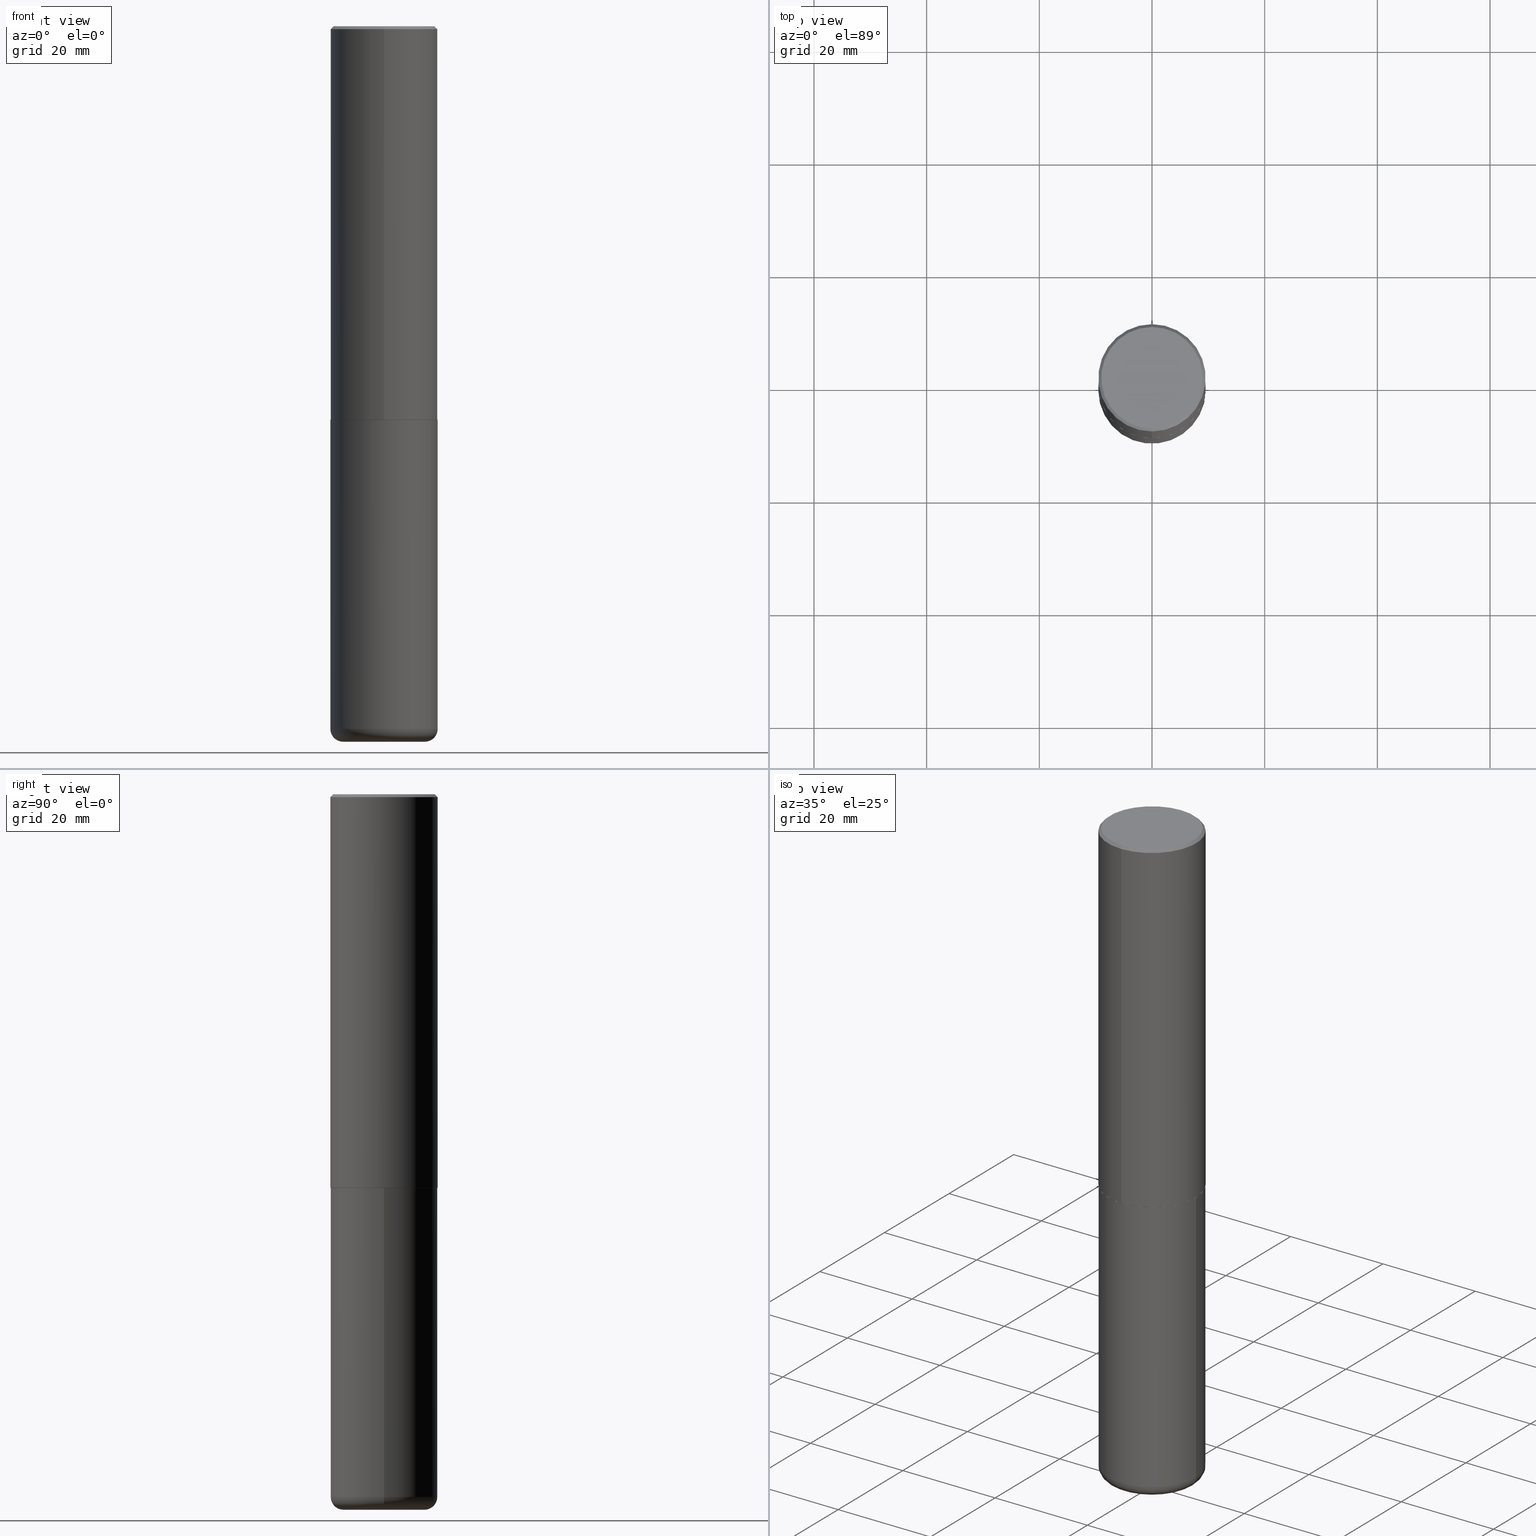
[diagram: canonical four-view strip — front | top / right | iso, engineering-drawing reading convention]
A machine part, canonical four-view strip (front | top / right | iso — engineering-drawing reading convention). The complete STEP part file that produces these views, byte-faithful:
ISO-10303-21;
HEADER;
FILE_DESCRIPTION (( 'STEP AP203' ),
    '1' );
FILE_NAME ('37661.STEP',
    '2024-03-02T07:21:48',
    ( '' ),
    ( '' ),
    'SwSTEP 2.0',
    'SolidWorks 2023',
    '' );
FILE_SCHEMA (( 'CONFIG_CONTROL_DESIGN' ));
ENDSEC;

DATA;
#1 = CARTESIAN_POINT ( 'NONE',  ( 2.618611004132350411E-15, 0.3749999999999999445, -0.02000000000000139513 ) ) ;
#2 = DIRECTION ( 'NONE',  ( -2.445468806185136597E-29, 3.491481338843145583E-15, 1.000000000000000000 ) ) ;
#3 = LOCAL_TIME ( 2, 21, 48.00000000000000000, #366 ) ;
#4 = CC_DESIGN_DATE_AND_TIME_ASSIGNMENT ( #363, #375, ( #57 ) ) ;
#5 = PLANE ( 'NONE',  #99 ) ;
#6 = CARTESIAN_POINT ( 'NONE',  ( 0.000000000000000000, 0.000000000000000000, 0.000000000000000000 ) ) ;
#7 = APPROVAL_STATUS ( 'not_yet_approved' ) ;
#8 = DIRECTION ( 'NONE',  ( 5.024295867789434219E-15, 0.7071067811867430830, 0.7071067811863519514 ) ) ;
#9 = EDGE_CURVE ( 'NONE', #144, #190, #141, .T. ) ;
#10 = ORIENTED_EDGE ( 'NONE', *, *, #194, .F. ) ;
#11 = AXIS2_PLACEMENT_3D ( 'NONE', #247, #274, #376 ) ;
#12 = CALENDAR_DATE ( 2024, 2, 3 ) ;
#13 = LINE ( 'NONE', #44, #246 ) ;
#14 = DIRECTION ( 'NONE',  ( -2.446040391741596606E-29, 3.490662795793665557E-15, 1.000000000000000000 ) ) ;
#15 = CALENDAR_DATE ( 2024, 2, 3 ) ;
#16 = DIRECTION ( 'NONE',  ( 1.000000000000000000, -6.982962677686266711E-15, 0.000000000000000000 ) ) ;
#17 = EDGE_LOOP ( 'NONE', ( #280, #377, #318, #154 ) ) ;
#18 = VECTOR ( 'NONE', #197, 39.37007874015748143 ) ;
#19 = CC_DESIGN_DATE_AND_TIME_ASSIGNMENT ( #394, #310, ( #225 ) ) ;
#20 = ORIENTED_EDGE ( 'NONE', *, *, #137, .F. ) ;
#21 =( CONVERSION_BASED_UNIT ( 'INCH', #340 ) LENGTH_UNIT ( ) NAMED_UNIT ( #292 ) );
#22 = ORIENTED_EDGE ( 'NONE', *, *, #75, .T. ) ;
#23 = CARTESIAN_POINT ( 'NONE',  ( 6.726611077289389265E-29, -9.599322688432580971E-15, -2.750000000000000000 ) ) ;
#24 = EDGE_LOOP ( 'NONE', ( #382, #253, #53, #222 ) ) ;
#25 = ADVANCED_FACE ( 'NONE', ( #167 ), #387, .T. ) ;
#26 = AXIS2_PLACEMENT_3D ( 'NONE', #230, #354, #262 ) ;
#27 = CIRCLE ( 'NONE', #123, 0.3750000000000000555 ) ;
#28 = ORIENTED_EDGE ( 'NONE', *, *, #126, .F. ) ;
#29 = DIRECTION ( 'NONE',  ( 2.438088387897960049E-29, -3.491481338843145188E-15, -1.000000000000000000 ) ) ;
#30 = CARTESIAN_POINT ( 'NONE',  ( -1.141397163745304909E-45, 1.628849886601155835E-31, 4.666305460853910467E-17 ) ) ;
#31 = AXIS2_PLACEMENT_3D ( 'NONE', #101, #29, #97 ) ;
#32 = FACE_OUTER_BOUND ( 'NONE', #350, .T. ) ;
#33 = DIRECTION ( 'NONE',  ( 7.105427357601001859E-15, 1.000000000000000000, -3.491481338843145583E-15 ) ) ;
#34 = CC_DESIGN_PERSON_AND_ORGANIZATION_ASSIGNMENT ( #145, #275, ( #57 ) ) ;
#35 = CONICAL_SURFACE ( 'NONE', #252, 0.3739999999999999991, 0.7853981633977213939 ) ;
#36 = FACE_OUTER_BOUND ( 'NONE', #56, .T. ) ;
#37 = PERSON_AND_ORGANIZATION ( #269, #186 ) ;
#38 = CARTESIAN_POINT ( 'NONE',  ( 6.726611077289389265E-29, -9.599322688432580971E-15, -2.750000000000000000 ) ) ;
#39 = LINE ( 'NONE', #303, #379 ) ;
#40 = ORIENTED_EDGE ( 'NONE', *, *, #172, .T. ) ;
#41 = LOCAL_TIME ( 2, 21, 48.00000000000000000, #71 ) ;
#42 = CARTESIAN_POINT ( 'NONE',  ( -0.3749999999999999445, -1.447863811461947092E-14, -4.910000000000000142 ) ) ;
#43 = AXIS2_PLACEMENT_3D ( 'NONE', #259, #290, #418 ) ;
#44 = CARTESIAN_POINT ( 'NONE',  ( -2.572686749164323547E-15, -0.3750000000000001110, -0.01999999999999877570 ) ) ;
#45 = APPROVAL_DATE_TIME ( #397, #68 ) ;
#46 = FACE_OUTER_BOUND ( 'NONE', #50, .T. ) ;
#47 = VERTEX_POINT ( 'NONE', #165 ) ;
#48 = EDGE_CURVE ( 'NONE', #190, #250, #195, .T. ) ;
#49 = CARTESIAN_POINT ( 'NONE',  ( -2.572686749164323547E-15, -0.3750000000000001110, -0.01999999999999877570 ) ) ;
#50 = EDGE_LOOP ( 'NONE', ( #84, #331, #226, #304 ) ) ;
#51 = APPROVAL_PERSON_ORGANIZATION ( #368, #114, #136 ) ;
#52 = CARTESIAN_POINT ( 'NONE',  ( 1.222734403092568523E-28, -1.745740669421572989E-14, -5.000000000000000000 ) ) ;
#53 = ORIENTED_EDGE ( 'NONE', *, *, #126, .T. ) ;
#54 = EDGE_CURVE ( 'NONE', #316, #250, #58, .T. ) ;
#55 = ORIENTED_EDGE ( 'NONE', *, *, #172, .F. ) ;
#56 = EDGE_LOOP ( 'NONE', ( #191, #384, #248, #28 ) ) ;
#57 = SECURITY_CLASSIFICATION ( '', '', #149 ) ;
#58 = CIRCLE ( 'NONE', #305, 0.3750000000000000555 ) ;
#59 = AXIS2_PLACEMENT_3D ( 'NONE', #311, #150, #380 ) ;
#60 = APPROVAL_PERSON_ORGANIZATION ( #339, #68, #400 ) ;
#61 = CYLINDRICAL_SURFACE ( 'NONE', #202, 0.3749999999999999445 ) ;
#62 = CARTESIAN_POINT ( 'NONE',  ( 6.724165036897648492E-29, -9.595832025636787455E-15, -2.749000000000000110 ) ) ;
#63 = ADVANCED_FACE ( 'NONE', ( #66 ), #220, .T. ) ;
#64 = LINE ( 'NONE', #322, #168 ) ;
#65 = AXIS2_PLACEMENT_3D ( 'NONE', #109, #399, #138 ) ;
#66 = FACE_OUTER_BOUND ( 'NONE', #349, .T. ) ;
#67 = UNCERTAINTY_MEASURE_WITH_UNIT (LENGTH_MEASURE( 1.000000000000000082E-05 ), #21, 'distance_accuracy_value', 'NONE');
#68 = APPROVAL ( #402, 'UNSPECIFIED' ) ;
#69 = FACE_OUTER_BOUND ( 'NONE', #152, .T. ) ;
#70 = CARTESIAN_POINT ( 'NONE',  ( 4.892080783483214581E-31, -6.981325591587361238E-17, -0.02000000000000008715 ) ) ;
#71 = COORDINATED_UNIVERSAL_TIME_OFFSET ( 5, 0, .BEHIND. ) ;
#72 = DIRECTION ( 'NONE',  ( 2.446040391741596606E-29, -3.490662795793665557E-15, -1.000000000000000000 ) ) ;
#73 = EDGE_LOOP ( 'NONE', ( #189, #110, #378, #119 ) ) ;
#74 = CARTESIAN_POINT ( 'NONE',  ( 0.2850000000000000311, -1.944755105735631653E-14, -5.000000000000000000 ) ) ;
#75 = EDGE_CURVE ( 'NONE', #217, #90, #344, .T. ) ;
#76 = CALENDAR_DATE ( 2024, 2, 3 ) ;
#77 = FACE_OUTER_BOUND ( 'NONE', #125, .T. ) ;
#78 = ORIENTED_EDGE ( 'NONE', *, *, #100, .T. ) ;
#79 = CARTESIAN_POINT ( 'NONE',  ( 2.664535259100411196E-15, 0.3749999999999907296, -2.749000000000000998 ) ) ;
#80 = CLOSED_SHELL ( 'NONE', ( #405, #63, #96, #88, #164, #231 ) ) ;
#81 = CONICAL_SURFACE ( 'NONE', #238, 0.3739999999999999991, 0.7853981633977213939 ) ;
#82 = PERSON_AND_ORGANIZATION ( #269, #186 ) ;
#83 = DIRECTION ( 'NONE',  ( -2.445468806185136597E-29, 3.491481338843145583E-15, 1.000000000000000000 ) ) ;
#84 = ORIENTED_EDGE ( 'NONE', *, *, #371, .T. ) ;
#85 =( NAMED_UNIT ( * ) PLANE_ANGLE_UNIT ( ) SI_UNIT ( $, .RADIAN. ) );
#86 = VERTEX_POINT ( 'NONE', #415 ) ;
#87 = VECTOR ( 'NONE', #115, 39.37007874015748143 ) ;
#88 = ADVANCED_FACE ( 'NONE', ( #32 ), #61, .T. ) ;
#89 = CARTESIAN_POINT ( 'NONE',  ( 2.664535259100376880E-15, 0.3750000000000002220, -1.308998548422625521E-15 ) ) ;
#90 = VERTEX_POINT ( 'NONE', #265 ) ;
#91 = VERTEX_POINT ( 'NONE', #227 ) ;
#92 = DIRECTION ( 'NONE',  ( -2.445468806185136597E-29, 3.491481338843145583E-15, 1.000000000000000000 ) ) ;
#93 = PRODUCT ( '37661', '37661', '', ( #185 ) ) ;
#94 = CIRCLE ( 'NONE', #203, 0.2850000000000000311 ) ;
#95 = DIRECTION ( 'NONE',  ( -2.446040391741596606E-29, 3.490662795793665557E-15, 1.000000000000000000 ) ) ;
#96 = ADVANCED_FACE ( 'NONE', ( #69 ), #386, .F. ) ;
#97 = DIRECTION ( 'NONE',  ( -1.000000000000000000, 6.982962677686265922E-15, -4.876176775795935793E-29 ) ) ;
#98 = CARTESIAN_POINT ( 'NONE',  ( 6.726611077289389265E-29, -9.599322688432580971E-15, -2.750000000000000000 ) ) ;
#99 = AXIS2_PLACEMENT_3D ( 'NONE', #307, #176, #174 ) ;
#100 = EDGE_CURVE ( 'NONE', #144, #314, #177, .T. ) ;
#101 = CARTESIAN_POINT ( 'NONE',  ( 6.725039217009124520E-29, -9.601573681818649859E-15, -2.750000000000000000 ) ) ;
#102 = CARTESIAN_POINT ( 'NONE',  ( -2.618611004132284935E-15, -0.3750000000000099920, -2.748999999999999222 ) ) ;
#103 = DIRECTION ( 'NONE',  ( -2.446040391741596045E-29, 3.490662795793665557E-15, 1.000000000000000000 ) ) ;
#104 = CLOSED_SHELL ( 'NONE', ( #131, #241, #188, #218, #25, #348, #180, #283 ) ) ;
#105 = AXIS2_PLACEMENT_3D ( 'NONE', #106, #369, #171 ) ;
#106 = CARTESIAN_POINT ( 'NONE',  ( 6.724165036897648492E-29, -9.595832025636787455E-15, -2.749000000000000110 ) ) ;
#107 = EDGE_CURVE ( 'NONE', #381, #91, #295, .T. ) ;
#108 = CALENDAR_DATE ( 2024, 2, 3 ) ;
#109 = CARTESIAN_POINT ( 'NONE',  ( 0.2850000000000000311, -1.913331773686043011E-14, -4.910000000000000142 ) ) ;
#110 = ORIENTED_EDGE ( 'NONE', *, *, #288, .T. ) ;
#111 = DATE_AND_TIME ( #76, #3 ) ;
#112 = CARTESIAN_POINT ( 'NONE',  ( 2.548781377355487113E-15, 0.3549999999999999822, -1.192522237898212341E-15 ) ) ;
#113 = APPROVAL_STATUS ( 'not_yet_approved' ) ;
#114 = APPROVAL ( #113, 'UNSPECIFIED' ) ;
#115 = DIRECTION ( 'NONE',  ( -2.445468806185136877E-29, 3.491481338843145188E-15, 1.000000000000000000 ) ) ;
#116 = AXIS2_PLACEMENT_3D ( 'NONE', #199, #95, #261 ) ;
#117 = VECTOR ( 'NONE', #118, 39.37007874015748143 ) ;
#118 = DIRECTION ( 'NONE',  ( -2.446040391741596606E-29, 3.490662795793665557E-15, 1.000000000000000000 ) ) ;
#119 = ORIENTED_EDGE ( 'NONE', *, *, #153, .F. ) ;
#120 = EDGE_LOOP ( 'NONE', ( #22, #347 ) ) ;
#121 = PERSON_AND_ORGANIZATION ( #269, #186 ) ;
#122 = ORIENTED_EDGE ( 'NONE', *, *, #153, .T. ) ;
#123 = AXIS2_PLACEMENT_3D ( 'NONE', #243, #14, #179 ) ;
#124 = ORIENTED_EDGE ( 'NONE', *, *, #325, .F. ) ;
#125 = EDGE_LOOP ( 'NONE', ( #286, #300, #151, #20 ) ) ;
#126 = EDGE_CURVE ( 'NONE', #217, #91, #323, .T. ) ;
#127 = DIRECTION ( 'NONE',  ( -6.982962677686266711E-15, -1.000000000000000000, 2.921762560068730595E-15 ) ) ;
#128 = AXIS2_PLACEMENT_3D ( 'NONE', #411, #281, #317 ) ;
#129 = CARTESIAN_POINT ( 'NONE',  ( 4.892080783483214581E-31, -6.981325591587361238E-17, -0.02000000000000008715 ) ) ;
#130 = DIRECTION ( 'NONE',  ( -2.445468806185136597E-29, 3.491481338843145583E-15, 1.000000000000000000 ) ) ;
#131 = ADVANCED_FACE ( 'NONE', ( #229 ), #81, .T. ) ;
#132 = CARTESIAN_POINT ( 'NONE',  ( -0.2850000000000000311, -1.495549900595945556E-14, -5.000000000000000000 ) ) ;
#133 = CIRCLE ( 'NONE', #59, 0.3749999999999999445 ) ;
#134 = DIRECTION ( 'NONE',  ( 1.000000000000000000, -6.982962677686266711E-15, 4.876176775795935793E-29 ) ) ;
#135 = CARTESIAN_POINT ( 'NONE',  ( -0.3750000000000000555, -1.070783826866887333E-14, -2.750000000000000000 ) ) ;
#136 = APPROVAL_ROLE ( '' ) ;
#137 = EDGE_CURVE ( 'NONE', #312, #381, #64, .T. ) ;
#138 = DIRECTION ( 'NONE',  ( 1.000000000000000000, -6.982962677686273810E-15, 0.000000000000000000 ) ) ;
#139 = ORIENTED_EDGE ( 'NONE', *, *, #371, .F. ) ;
#140 = APPROVAL_DATE_TIME ( #111, #309 ) ;
#141 = CIRCLE ( 'NONE', #162, 0.08999999999999992728 ) ;
#142 = VECTOR ( 'NONE', #244, 39.37007874015748143 ) ;
#143 = FACE_OUTER_BOUND ( 'NONE', #373, .T. ) ;
#144 = VERTEX_POINT ( 'NONE', #132 ) ;
#145 = PERSON_AND_ORGANIZATION ( #269, #186 ) ;
#146 = CARTESIAN_POINT ( 'NONE',  ( -2.611628041454596160E-15, -0.3740000000000096581, -2.749999999999998668 ) ) ;
#147 = CC_DESIGN_PERSON_AND_ORGANIZATION_ASSIGNMENT ( #271, #173, ( #225 ) ) ;
#148 = DIRECTION ( 'NONE',  ( -6.982962677686265922E-15, -1.000000000000000000, 3.490662795793665557E-15 ) ) ;
#149 = SECURITY_CLASSIFICATION_LEVEL ( 'unclassified' ) ;
#150 = DIRECTION ( 'NONE',  ( -2.445468806185136597E-29, 3.491481338843145583E-15, 1.000000000000000000 ) ) ;
#151 = ORIENTED_EDGE ( 'NONE', *, *, #107, .F. ) ;
#152 = EDGE_LOOP ( 'NONE', ( #412, #255 ) ) ;
#153 = EDGE_CURVE ( 'NONE', #285, #312, #284, .T. ) ;
#154 = ORIENTED_EDGE ( 'NONE', *, *, #260, .F. ) ;
#155 = LINE ( 'NONE', #89, #117 ) ;
#156 = ORIENTED_EDGE ( 'NONE', *, *, #201, .T. ) ;
#157 = CIRCLE ( 'NONE', #228, 0.3739999999999999991 ) ;
#158 = VERTEX_POINT ( 'NONE', #289 ) ;
#159 = DIRECTION ( 'NONE',  ( -2.445468806185136877E-29, 3.491481338843145188E-15, 1.000000000000000000 ) ) ;
#160 = APPLICATION_CONTEXT ( 'configuration controlled 3d designs of mechanical parts and assemblies' ) ;
#161 = DIRECTION ( 'NONE',  ( -6.982962677686265922E-15, -1.000000000000000000, 2.913971193241877611E-15 ) ) ;
#162 = AXIS2_PLACEMENT_3D ( 'NONE', #356, #33, #361 ) ;
#163 = AXIS2_PLACEMENT_3D ( 'NONE', #362, #330, #206 ) ;
#164 = ADVANCED_FACE ( 'NONE', ( #234 ), #390, .T. ) ;
#165 = CARTESIAN_POINT ( 'NONE',  ( 0.3749999999999999445, -1.976178437785219664E-14, -4.910000000000000142 ) ) ;
#166 = DIRECTION ( 'NONE',  ( -2.446040391741596606E-29, 3.490662795793665557E-15, 1.000000000000000000 ) ) ;
#167 = FACE_OUTER_BOUND ( 'NONE', #282, .T. ) ;
#168 = VECTOR ( 'NONE', #358, 39.37007874015748143 ) ;
#169 = AXIS2_PLACEMENT_3D ( 'NONE', #70, #72, #297 ) ;
#170 = APPROVAL_PERSON_ORGANIZATION ( #82, #309, #306 ) ;
#171 = DIRECTION ( 'NONE',  ( -6.982962677686265922E-15, -1.000000000000000000, 2.913971193241877611E-15 ) ) ;
#172 = EDGE_CURVE ( 'NONE', #190, #47, #296, .T. ) ;
#173 = PERSON_AND_ORGANIZATION_ROLE ( 'creator' ) ;
#174 = DIRECTION ( 'NONE',  ( -1.000000000000000000, 6.982962677686265922E-15, -4.876176775795935793E-29 ) ) ;
#175 = PERSON_AND_ORGANIZATION ( #269, #186 ) ;
#176 = DIRECTION ( 'NONE',  ( 2.438088387897960049E-29, -3.491481338843145188E-15, -1.000000000000000000 ) ) ;
#177 = CIRCLE ( 'NONE', #26, 0.2850000000000000311 ) ;
#178 = AXIS2_PLACEMENT_3D ( 'NONE', #328, #392, #334 ) ;
#179 = DIRECTION ( 'NONE',  ( -6.982962677686265922E-15, -1.000000000000000000, 3.494488891895536035E-15 ) ) ;
#180 = ADVANCED_FACE ( 'NONE', ( #268 ), #395, .F. ) ;
#181 = COORDINATED_UNIVERSAL_TIME_OFFSET ( 5, 0, .BEHIND. ) ;
#182 = LINE ( 'NONE', #146, #142 ) ;
#183 = CARTESIAN_POINT ( 'NONE',  ( 0.000000000000000000, 0.000000000000000000, 0.000000000000000000 ) ) ;
#184 = ORIENTED_EDGE ( 'NONE', *, *, #137, .T. ) ;
#185 = MECHANICAL_CONTEXT ( 'NONE', #160, 'mechanical' ) ;
#186 = ORGANIZATION ( 'UNSPECIFIED', 'UNSPECIFIED', '' ) ;
#187 = ORIENTED_EDGE ( 'NONE', *, *, #201, .F. ) ;
#188 = ADVANCED_FACE ( 'NONE', ( #36 ), #193, .T. ) ;
#189 = ORIENTED_EDGE ( 'NONE', *, *, #332, .F. ) ;
#190 = VERTEX_POINT ( 'NONE', #42 ) ;
#191 = ORIENTED_EDGE ( 'NONE', *, *, #302, .F. ) ;
#192 = PRODUCT_DEFINITION_SHAPE ( 'NONE', 'NONE',  #225 ) ;
#193 = CONICAL_SURFACE ( 'NONE', #178, 0.3750000000000000555, 0.7853981633974465026 ) ;
#194 = EDGE_CURVE ( 'NONE', #91, #381, #27, .T. ) ;
#195 = LINE ( 'NONE', #360, #210 ) ;
#196 = DIRECTION ( 'NONE',  ( -6.982962677686265922E-15, -1.000000000000000000, 3.494488891895536035E-15 ) ) ;
#197 = DIRECTION ( 'NONE',  ( 4.937700262164538576E-15, 0.7071067811865437980, -0.7071067811865512365 ) ) ;
#198 = DIRECTION ( 'NONE',  ( -2.445468806185136597E-29, 3.491481338843145583E-15, 1.000000000000000000 ) ) ;
#199 = CARTESIAN_POINT ( 'NONE',  ( 0.000000000000000000, 0.000000000000000000, 0.000000000000000000 ) ) ;
#200 = DIRECTION ( 'NONE',  ( 2.446040391741596045E-29, -3.490662795793665557E-15, -1.000000000000000000 ) ) ;
#201 = EDGE_CURVE ( 'NONE', #314, #47, #211, .T. ) ;
#202 = AXIS2_PLACEMENT_3D ( 'NONE', #291, #2, #134 ) ;
#203 = AXIS2_PLACEMENT_3D ( 'NONE', #52, #83, #16 ) ;
#204 = DIRECTION ( 'NONE',  ( -4.851104656540954809E-15, -0.7071067811865486830, -0.7071067811865463515 ) ) ;
#205 = DESIGN_CONTEXT ( 'detailed design', #357, 'design' ) ;
#206 = DIRECTION ( 'NONE',  ( -6.982962677686266711E-15, -1.000000000000000000, 2.921762560068730595E-15 ) ) ;
#207 = EDGE_CURVE ( 'NONE', #312, #285, #335, .T. ) ;
#208 = DIRECTION ( 'NONE',  ( -6.982962677686266711E-15, -1.000000000000000000, 3.490662795793665951E-15 ) ) ;
#209 = CC_DESIGN_APPROVAL ( #68, ( #294 ) ) ;
#210 = VECTOR ( 'NONE', #159, 39.37007874015748143 ) ;
#211 = CIRCLE ( 'NONE', #65, 0.08999999999999992728 ) ;
#212 = CC_DESIGN_SECURITY_CLASSIFICATION ( #57, ( #294 ) ) ;
#213 = DIRECTION ( 'NONE',  ( -2.446040391741596606E-29, 3.490662795793665557E-15, 1.000000000000000000 ) ) ;
#214 = PERSON_AND_ORGANIZATION_ROLE ( 'creator' ) ;
#215 = MANIFOLD_SOLID_BREP ( 'Body-Move/Copy2[2]', #104 ) ;
#216 = ORIENTED_EDGE ( 'NONE', *, *, #100, .F. ) ;
#217 = VERTEX_POINT ( 'NONE', #112 ) ;
#218 = ADVANCED_FACE ( 'NONE', ( #273 ), #410, .T. ) ;
#219 = CARTESIAN_POINT ( 'NONE',  ( 0.3749999999999999445, -2.618611004132349622E-15, 1.828566290923475642E-29 ) ) ;
#220 = TOROIDAL_SURFACE ( 'NONE', #409, 0.2850000000000000311, 0.08999999999999989952 ) ;
#221 = CC_DESIGN_APPROVAL ( #114, ( #225 ) ) ;
#222 = ORIENTED_EDGE ( 'NONE', *, *, #194, .T. ) ;
#223 = DIRECTION ( 'NONE',  ( 1.000000000000000000, -6.982962677686266711E-15, 4.876176775795935793E-29 ) ) ;
#224 = ORIENTED_EDGE ( 'NONE', *, *, #388, .F. ) ;
#225 = PRODUCT_DEFINITION ( 'UNKNOWN', '', #294, #205 ) ;
#226 = ORIENTED_EDGE ( 'NONE', *, *, #54, .F. ) ;
#227 = CARTESIAN_POINT ( 'NONE',  ( 2.618611004132350411E-15, 0.3749999999999999445, -0.02000000000000139513 ) ) ;
#228 = AXIS2_PLACEMENT_3D ( 'NONE', #336, #308, #333 ) ;
#229 = FACE_OUTER_BOUND ( 'NONE', #17, .T. ) ;
#230 = CARTESIAN_POINT ( 'NONE',  ( 1.222734403092568523E-28, -1.745740669421572989E-14, -5.000000000000000000 ) ) ;
#231 = ADVANCED_FACE ( 'NONE', ( #143 ), #5, .T. ) ;
#232 = DIRECTION ( 'NONE',  ( 1.000000000000000000, -6.982962677686266711E-15, 0.000000000000000000 ) ) ;
#233 = CC_DESIGN_APPROVAL ( #309, ( #57 ) ) ;
#234 = FACE_OUTER_BOUND ( 'NONE', #341, .T. ) ;
#235 = CARTESIAN_POINT ( 'NONE',  ( 0.3750000000000000555, -1.222018468595100145E-14, -2.750000000000000000 ) ) ;
#236 = PERSON_AND_ORGANIZATION_ROLE ( 'design_supplier' ) ;
#237 = CYLINDRICAL_SURFACE ( 'NONE', #374, 0.3750000000000002220 ) ;
#238 = AXIS2_PLACEMENT_3D ( 'NONE', #98, #327, #127 ) ;
#239 = SHAPE_DEFINITION_REPRESENTATION ( #192, #298 ) ;
#240 = PLANE ( 'NONE',  #270 ) ;
#241 = ADVANCED_FACE ( 'NONE', ( #77 ), #237, .T. ) ;
#242 = COORDINATED_UNIVERSAL_TIME_OFFSET ( 5, 0, .BEHIND. ) ;
#243 = CARTESIAN_POINT ( 'NONE',  ( 4.892080783483214581E-31, -6.981325591587361238E-17, -0.02000000000000008715 ) ) ;
#244 = DIRECTION ( 'NONE',  ( -4.937700262165896205E-15, -0.7071067811867381980, 0.7071067811863568364 ) ) ;
#245 = CALENDAR_DATE ( 2024, 2, 3 ) ;
#246 = VECTOR ( 'NONE', #204, 39.37007874015748143 ) ;
#247 = CARTESIAN_POINT ( 'NONE',  ( 6.725039217009124520E-29, -9.601573681818649859E-15, -2.750000000000000000 ) ) ;
#248 = ORIENTED_EDGE ( 'NONE', *, *, #107, .T. ) ;
#249 = LINE ( 'NONE', #219, #87 ) ;
#250 = VERTEX_POINT ( 'NONE', #135 ) ;
#251 = DIRECTION ( 'NONE',  ( -2.446040391741596606E-29, 3.490662795793665557E-15, 1.000000000000000000 ) ) ;
#252 = AXIS2_PLACEMENT_3D ( 'NONE', #23, #251, #401 ) ;
#253 = ORIENTED_EDGE ( 'NONE', *, *, #75, .F. ) ;
#254 = EDGE_CURVE ( 'NONE', #90, #381, #13, .T. ) ;
#255 = ORIENTED_EDGE ( 'NONE', *, *, #388, .T. ) ;
#256 = ORIENTED_EDGE ( 'NONE', *, *, #9, .F. ) ;
#257 = AXIS2_PLACEMENT_3D ( 'NONE', #30, #166, #258 ) ;
#258 = DIRECTION ( 'NONE',  ( -6.982962677686265922E-15, -1.000000000000000000, 3.490662795793665557E-15 ) ) ;
#259 = CARTESIAN_POINT ( 'NONE',  ( 1.200725183836902132E-28, -1.714317337371984662E-14, -4.910000000000000142 ) ) ;
#260 = EDGE_CURVE ( 'NONE', #86, #312, #182, .T. ) ;
#261 = DIRECTION ( 'NONE',  ( -6.982962677686266711E-15, -1.000000000000000000, 3.490662795793665951E-15 ) ) ;
#262 = DIRECTION ( 'NONE',  ( 1.000000000000000000, -6.982962677686266711E-15, 0.000000000000000000 ) ) ;
#263 = AXIS2_PLACEMENT_3D ( 'NONE', #364, #213, #148 ) ;
#264 = CC_DESIGN_PERSON_AND_ORGANIZATION_ASSIGNMENT ( #37, #236, ( #294 ) ) ;
#265 = CARTESIAN_POINT ( 'NONE',  ( -2.504081769186608216E-15, -0.3549999999999999822, 1.285848347115290366E-15 ) ) ;
#266 = FACE_OUTER_BOUND ( 'NONE', #120, .T. ) ;
#267 = COORDINATED_UNIVERSAL_TIME_OFFSET ( 5, 0, .BEHIND. ) ;
#268 = FACE_OUTER_BOUND ( 'NONE', #278, .T. ) ;
#269 = PERSON ( 'UNSPECIFIED', 'UNSPECIFIED', 'UNSPECIFIED', ('UNSPECIFIED'), ('UNSPECIFIED'), ('UNSPECIFIED') ) ;
#270 = AXIS2_PLACEMENT_3D ( 'NONE', #367, #200, #393 ) ;
#271 = PERSON_AND_ORGANIZATION ( #269, #186 ) ;
#272 = DIRECTION ( 'NONE',  ( -6.982962677686265922E-15, -1.000000000000000000, 3.490662795793665557E-15 ) ) ;
#273 = FACE_OUTER_BOUND ( 'NONE', #24, .T. ) ;
#274 = DIRECTION ( 'NONE',  ( -2.445468806185136597E-29, 3.491481338843145583E-15, 1.000000000000000000 ) ) ;
#275 = PERSON_AND_ORGANIZATION_ROLE ( 'classification_officer' ) ;
#276 = CIRCLE ( 'NONE', #11, 0.3750000000000000555 ) ;
#277 =( LENGTH_UNIT ( ) NAMED_UNIT ( * ) SI_UNIT ( $, .METRE. ) );
#278 = EDGE_LOOP ( 'NONE', ( #124, #403 ) ) ;
#279 = PERSON_AND_ORGANIZATION_ROLE ( 'design_owner' ) ;
#280 = ORIENTED_EDGE ( 'NONE', *, *, #325, .T. ) ;
#281 = DIRECTION ( 'NONE',  ( 0.000000000000000000, 0.000000000000000000, 1.000000000000000000 ) ) ;
#282 = EDGE_LOOP ( 'NONE', ( #406, #122, #184, #10 ) ) ;
#283 = ADVANCED_FACE ( 'NONE', ( #266 ), #240, .F. ) ;
#284 = CIRCLE ( 'NONE', #359, 0.3750000000000003886 ) ;
#285 = VERTEX_POINT ( 'NONE', #79 ) ;
#286 = ORIENTED_EDGE ( 'NONE', *, *, #207, .T. ) ;
#287 = CARTESIAN_POINT ( 'NONE',  ( 6.725039217009124520E-29, -9.601573681818649859E-15, -2.750000000000000000 ) ) ;
#288 = EDGE_CURVE ( 'NONE', #158, #86, #157, .T. ) ;
#289 = CARTESIAN_POINT ( 'NONE',  ( 2.660982545421643429E-15, 0.3739999999999903957, -2.750000000000000888 ) ) ;
#290 = DIRECTION ( 'NONE',  ( -2.445468806185136597E-29, 3.491481338843145583E-15, 1.000000000000000000 ) ) ;
#291 = CARTESIAN_POINT ( 'NONE',  ( 0.000000000000000000, 0.000000000000000000, 0.000000000000000000 ) ) ;
#292 = DIMENSIONAL_EXPONENTS ( 1.000000000000000000, 0.000000000000000000, 0.000000000000000000, 0.000000000000000000, 0.000000000000000000, 0.000000000000000000, 0.000000000000000000 ) ;
#293 = CC_DESIGN_PERSON_AND_ORGANIZATION_ASSIGNMENT ( #121, #279, ( #93 ) ) ;
#294 = PRODUCT_DEFINITION_FORMATION_WITH_SPECIFIED_SOURCE ( 'ANY', '', #93, .NOT_KNOWN. ) ;
#295 = CIRCLE ( 'NONE', #351, 0.3750000000000000555 ) ;
#296 = CIRCLE ( 'NONE', #324, 0.3749999999999999445 ) ;
#297 = DIRECTION ( 'NONE',  ( 6.982962677686265922E-15, 1.000000000000000000, -3.494488891895536035E-15 ) ) ;
#298 = ADVANCED_BREP_SHAPE_REPRESENTATION ( '37661', ( #352, #215, #128 ), #345 ) ;
#299 = DIRECTION ( 'NONE',  ( -2.446040391741596606E-29, 3.490662795793665557E-15, 1.000000000000000000 ) ) ;
#300 = ORIENTED_EDGE ( 'NONE', *, *, #383, .T. ) ;
#301 = APPROVAL_DATE_TIME ( #370, #114 ) ;
#302 = EDGE_CURVE ( 'NONE', #90, #217, #416, .T. ) ;
#303 = CARTESIAN_POINT ( 'NONE',  ( 2.657429831742841742E-15, 0.3739999999999903957, -2.750000000000000888 ) ) ;
#304 = ORIENTED_EDGE ( 'NONE', *, *, #365, .F. ) ;
#305 = AXIS2_PLACEMENT_3D ( 'NONE', #287, #92, #232 ) ;
#306 = APPROVAL_ROLE ( '' ) ;
#307 = CARTESIAN_POINT ( 'NONE',  ( 1.222734403092568523E-28, -1.745740669421572989E-14, -5.000000000000000000 ) ) ;
#308 = DIRECTION ( 'NONE',  ( -2.446040391741596606E-29, 3.490662795793665557E-15, 1.000000000000000000 ) ) ;
#309 = APPROVAL ( #7, 'UNSPECIFIED' ) ;
#310 = DATE_TIME_ROLE ( 'creation_date' ) ;
#311 = CARTESIAN_POINT ( 'NONE',  ( 1.200725183836902132E-28, -1.714317337371984662E-14, -4.910000000000000142 ) ) ;
#312 = VERTEX_POINT ( 'NONE', #102 ) ;
#313 = LOCAL_TIME ( 2, 21, 48.00000000000000000, #242 ) ;
#314 = VERTEX_POINT ( 'NONE', #74 ) ;
#315 = CYLINDRICAL_SURFACE ( 'NONE', #329, 0.3749999999999999445 ) ;
#316 = VERTEX_POINT ( 'NONE', #235 ) ;
#317 = DIRECTION ( 'NONE',  ( 1.000000000000000000, 0.000000000000000000, 0.000000000000000000 ) ) ;
#318 = ORIENTED_EDGE ( 'NONE', *, *, #207, .F. ) ;
#319 = LOCAL_TIME ( 2, 21, 48.00000000000000000, #267 ) ;
#320 = ORIENTED_EDGE ( 'NONE', *, *, #413, .F. ) ;
#321 = DIRECTION ( 'NONE',  ( -2.446040391741596606E-29, 3.490662795793665557E-15, 1.000000000000000000 ) ) ;
#322 = CARTESIAN_POINT ( 'NONE',  ( -2.618611004132351594E-15, -0.3750000000000002220, 1.308998548422625521E-15 ) ) ;
#323 = LINE ( 'NONE', #1, #18 ) ;
#324 = AXIS2_PLACEMENT_3D ( 'NONE', #417, #130, #372 ) ;
#325 = EDGE_CURVE ( 'NONE', #86, #158, #353, .T. ) ;
#326 = DIRECTION ( 'NONE',  ( 1.000000000000000000, -6.982962677686269077E-15, 4.883557194083113462E-29 ) ) ;
#327 = DIRECTION ( 'NONE',  ( -2.446040391741596606E-29, 3.490662795793665557E-15, 1.000000000000000000 ) ) ;
#328 = CARTESIAN_POINT ( 'NONE',  ( 4.892080783483214581E-31, -6.981325591587361238E-17, -0.02000000000000008715 ) ) ;
#329 = AXIS2_PLACEMENT_3D ( 'NONE', #183, #407, #223 ) ;
#330 = DIRECTION ( 'NONE',  ( -2.446040391741596606E-29, 3.490662795793665557E-15, 1.000000000000000000 ) ) ;
#331 = ORIENTED_EDGE ( 'NONE', *, *, #48, .T. ) ;
#332 = EDGE_CURVE ( 'NONE', #158, #285, #39, .T. ) ;
#333 = DIRECTION ( 'NONE',  ( -6.982962677686266711E-15, -1.000000000000000000, 2.921762560068730595E-15 ) ) ;
#334 = DIRECTION ( 'NONE',  ( 6.982962677686265922E-15, 1.000000000000000000, -3.494488891895536035E-15 ) ) ;
#335 = CIRCLE ( 'NONE', #105, 0.3750000000000003886 ) ;
#336 = CARTESIAN_POINT ( 'NONE',  ( 6.726611077289389265E-29, -9.599322688432580971E-15, -2.750000000000000000 ) ) ;
#337 = CC_DESIGN_PERSON_AND_ORGANIZATION_ASSIGNMENT ( #175, #214, ( #294 ) ) ;
#338 = ORIENTED_EDGE ( 'NONE', *, *, #48, .F. ) ;
#339 = PERSON_AND_ORGANIZATION ( #269, #186 ) ;
#340 = LENGTH_MEASURE_WITH_UNIT ( LENGTH_MEASURE( 0.02539999999999999897 ), #277 );
#341 = EDGE_LOOP ( 'NONE', ( #256, #78, #156, #55 ) ) ;
#342 = APPLICATION_PROTOCOL_DEFINITION ( 'international standard', 'config_control_design', 1994, #160 ) ;
#343 = ORIENTED_EDGE ( 'NONE', *, *, #9, .T. ) ;
#344 = CIRCLE ( 'NONE', #257, 0.3549999999999999822 ) ;
#345 =( GEOMETRIC_REPRESENTATION_CONTEXT ( 3 ) GLOBAL_UNCERTAINTY_ASSIGNED_CONTEXT ( ( #67 ) ) GLOBAL_UNIT_ASSIGNED_CONTEXT ( ( #21, #85, #404 ) ) REPRESENTATION_CONTEXT ( 'NONE', 'WORKASPACE' ) );
#346 = APPLICATION_PROTOCOL_DEFINITION ( 'international standard', 'config_control_design', 1994, #357 ) ;
#347 = ORIENTED_EDGE ( 'NONE', *, *, #302, .T. ) ;
#348 = ADVANCED_FACE ( 'NONE', ( #398 ), #35, .T. ) ;
#349 = EDGE_LOOP ( 'NONE', ( #414, #343, #139, #187 ) ) ;
#350 = EDGE_LOOP ( 'NONE', ( #338, #40, #408, #224 ) ) ;
#351 = AXIS2_PLACEMENT_3D ( 'NONE', #129, #321, #196 ) ;
#352 = MANIFOLD_SOLID_BREP ( 'Body-Move/Copy2[1]', #80 ) ;
#353 = CIRCLE ( 'NONE', #163, 0.3739999999999999991 ) ;
#354 = DIRECTION ( 'NONE',  ( -2.445468806185136597E-29, 3.491481338843145583E-15, 1.000000000000000000 ) ) ;
#355 = PRODUCT_RELATED_PRODUCT_CATEGORY ( 'detail', '', ( #93 ) ) ;
#356 = CARTESIAN_POINT ( 'NONE',  ( -0.2850000000000000311, -1.511812657680356008E-14, -4.910000000000000142 ) ) ;
#357 = APPLICATION_CONTEXT ( 'configuration controlled 3d designs of mechanical parts and assemblies' ) ;
#358 = DIRECTION ( 'NONE',  ( -2.446040391741596606E-29, 3.490662795793665557E-15, 1.000000000000000000 ) ) ;
#359 = AXIS2_PLACEMENT_3D ( 'NONE', #62, #391, #161 ) ;
#360 = CARTESIAN_POINT ( 'NONE',  ( -0.3749999999999999445, 2.664535259100375303E-15, -1.844600658845589318E-29 ) ) ;
#361 = DIRECTION ( 'NONE',  ( -1.000000000000000000, 7.105427357600996337E-15, 0.000000000000000000 ) ) ;
#362 = CARTESIAN_POINT ( 'NONE',  ( 6.726611077289389265E-29, -9.599322688432580971E-15, -2.750000000000000000 ) ) ;
#363 = DATE_AND_TIME ( #15, #313 ) ;
#364 = CARTESIAN_POINT ( 'NONE',  ( -1.141397163745304909E-45, 1.628849886601155835E-31, 4.666305460853910467E-17 ) ) ;
#365 = EDGE_CURVE ( 'NONE', #47, #316, #249, .T. ) ;
#366 = COORDINATED_UNIVERSAL_TIME_OFFSET ( 5, 0, .BEHIND. ) ;
#367 = CARTESIAN_POINT ( 'NONE',  ( 2.478951750578624209E-15, 0.3549999999999999822, -1.215853765202481601E-15 ) ) ;
#368 = PERSON_AND_ORGANIZATION ( #269, #186 ) ;
#369 = DIRECTION ( 'NONE',  ( -2.446040391741596606E-29, 3.490662795793665557E-15, 1.000000000000000000 ) ) ;
#370 = DATE_AND_TIME ( #12, #396 ) ;
#371 = EDGE_CURVE ( 'NONE', #47, #190, #133, .T. ) ;
#372 = DIRECTION ( 'NONE',  ( 1.000000000000000000, -6.982962677686269077E-15, 0.000000000000000000 ) ) ;
#373 = EDGE_LOOP ( 'NONE', ( #320, #216 ) ) ;
#374 = AXIS2_PLACEMENT_3D ( 'NONE', #6, #299, #208 ) ;
#375 = DATE_TIME_ROLE ( 'classification_date' ) ;
#376 = DIRECTION ( 'NONE',  ( 1.000000000000000000, -6.982962677686266711E-15, 0.000000000000000000 ) ) ;
#377 = ORIENTED_EDGE ( 'NONE', *, *, #332, .T. ) ;
#378 = ORIENTED_EDGE ( 'NONE', *, *, #260, .T. ) ;
#379 = VECTOR ( 'NONE', #8, 39.37007874015748143 ) ;
#380 = DIRECTION ( 'NONE',  ( 1.000000000000000000, -6.982962677686269077E-15, 0.000000000000000000 ) ) ;
#381 = VERTEX_POINT ( 'NONE', #49 ) ;
#382 = ORIENTED_EDGE ( 'NONE', *, *, #254, .F. ) ;
#383 = EDGE_CURVE ( 'NONE', #285, #91, #155, .T. ) ;
#384 = ORIENTED_EDGE ( 'NONE', *, *, #254, .T. ) ;
#385 = AXIS2_PLACEMENT_3D ( 'NONE', #38, #103, #272 ) ;
#386 = PLANE ( 'NONE',  #31 ) ;
#387 = CYLINDRICAL_SURFACE ( 'NONE', #116, 0.3750000000000002220 ) ;
#388 = EDGE_CURVE ( 'NONE', #250, #316, #276, .T. ) ;
#389 = CARTESIAN_POINT ( 'NONE',  ( 1.200725183836902132E-28, -1.714317337371984662E-14, -4.910000000000000142 ) ) ;
#390 = TOROIDAL_SURFACE ( 'NONE', #43, 0.2850000000000000311, 0.08999999999999989952 ) ;
#391 = DIRECTION ( 'NONE',  ( -2.446040391741596606E-29, 3.490662795793665557E-15, 1.000000000000000000 ) ) ;
#392 = DIRECTION ( 'NONE',  ( 2.446040391741596606E-29, -3.490662795793665557E-15, -1.000000000000000000 ) ) ;
#393 = DIRECTION ( 'NONE',  ( 6.982962677686265922E-15, 1.000000000000000000, -3.490662795793665557E-15 ) ) ;
#394 = DATE_AND_TIME ( #245, #41 ) ;
#395 = PLANE ( 'NONE',  #385 ) ;
#396 = LOCAL_TIME ( 2, 21, 48.00000000000000000, #181 ) ;
#397 = DATE_AND_TIME ( #108, #319 ) ;
#398 = FACE_OUTER_BOUND ( 'NONE', #73, .T. ) ;
#399 = DIRECTION ( 'NONE',  ( -6.982962677686266711E-15, -1.000000000000000000, 3.491481338843145583E-15 ) ) ;
#400 = APPROVAL_ROLE ( '' ) ;
#401 = DIRECTION ( 'NONE',  ( -6.982962677686266711E-15, -1.000000000000000000, 2.921762560068730595E-15 ) ) ;
#402 = APPROVAL_STATUS ( 'not_yet_approved' ) ;
#403 = ORIENTED_EDGE ( 'NONE', *, *, #288, .F. ) ;
#404 =( NAMED_UNIT ( * ) SI_UNIT ( $, .STERADIAN. ) SOLID_ANGLE_UNIT ( ) );
#405 = ADVANCED_FACE ( 'NONE', ( #46 ), #315, .T. ) ;
#406 = ORIENTED_EDGE ( 'NONE', *, *, #383, .F. ) ;
#407 = DIRECTION ( 'NONE',  ( -2.445468806185136597E-29, 3.491481338843145583E-15, 1.000000000000000000 ) ) ;
#408 = ORIENTED_EDGE ( 'NONE', *, *, #365, .T. ) ;
#409 = AXIS2_PLACEMENT_3D ( 'NONE', #389, #198, #326 ) ;
#410 = CONICAL_SURFACE ( 'NONE', #169, 0.3750000000000000555, 0.7853981633974465026 ) ;
#411 = CARTESIAN_POINT ( 'NONE',  ( 0.000000000000000000, 0.000000000000000000, 0.000000000000000000 ) ) ;
#412 = ORIENTED_EDGE ( 'NONE', *, *, #54, .T. ) ;
#413 = EDGE_CURVE ( 'NONE', #314, #144, #94, .T. ) ;
#414 = ORIENTED_EDGE ( 'NONE', *, *, #413, .T. ) ;
#415 = CARTESIAN_POINT ( 'NONE',  ( -2.611628041454596160E-15, -0.3740000000000096581, -2.749999999999998668 ) ) ;
#416 = CIRCLE ( 'NONE', #263, 0.3549999999999999822 ) ;
#417 = CARTESIAN_POINT ( 'NONE',  ( 1.200725183836902132E-28, -1.714317337371984662E-14, -4.910000000000000142 ) ) ;
#418 = DIRECTION ( 'NONE',  ( 1.000000000000000000, -6.982962677686269077E-15, 4.883557194083113462E-29 ) ) ;
ENDSEC;
END-ISO-10303-21;
